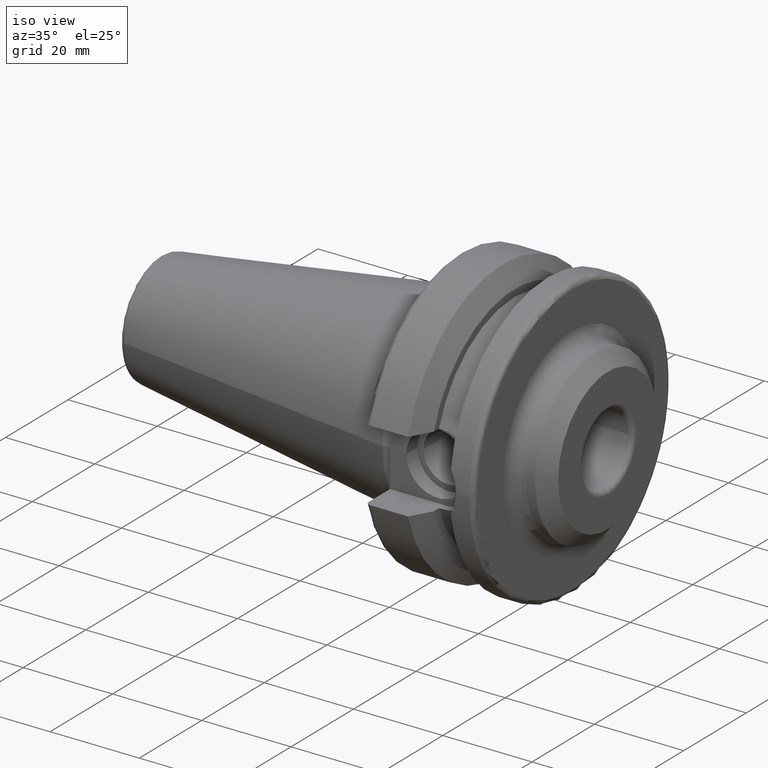
[diagram: clean part render]
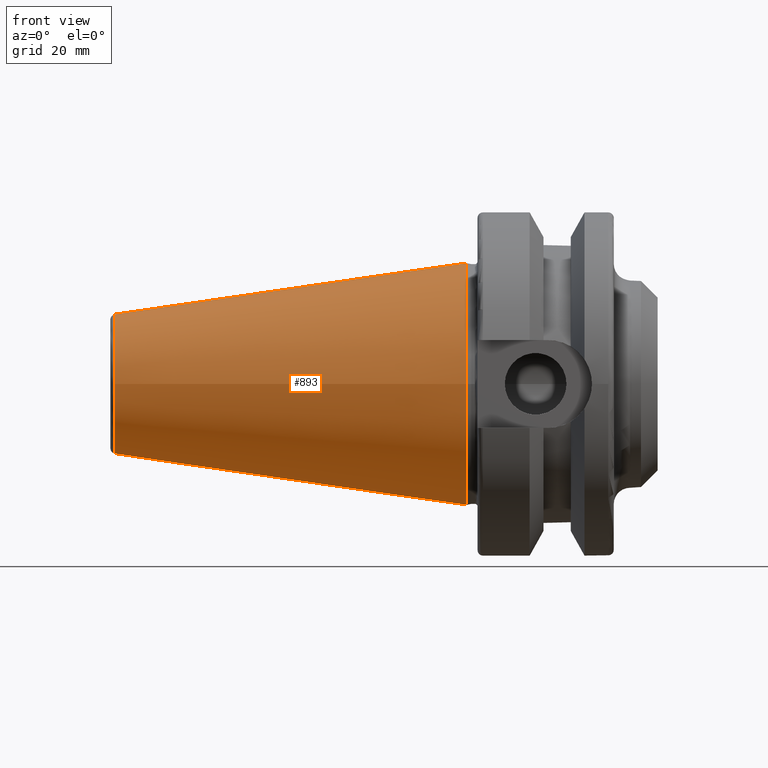
[diagram: tour spotlight — one face highlighted and labeled with its STEP entity id]
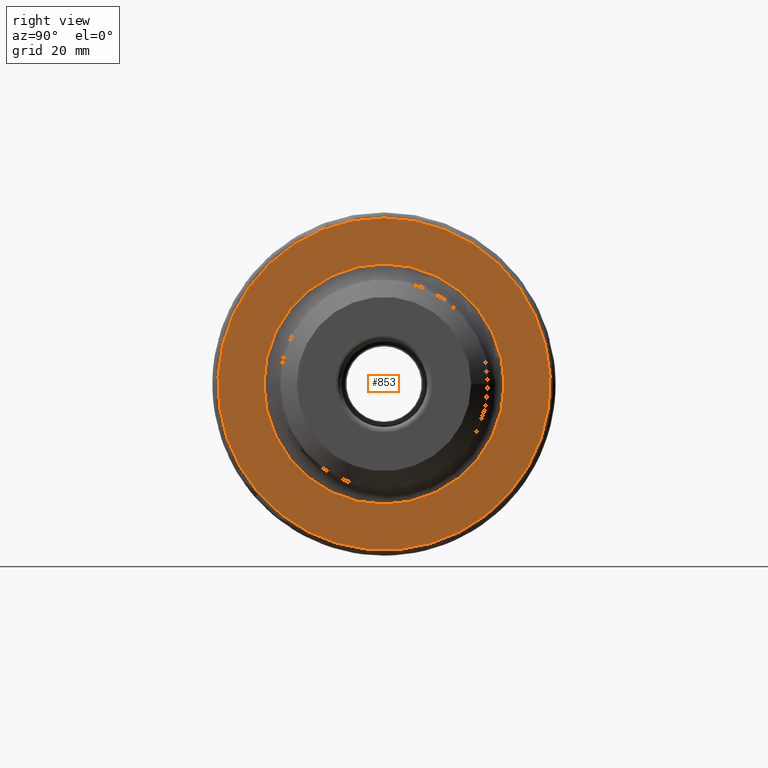
[diagram: tour spotlight — one face highlighted and labeled with its STEP entity id]
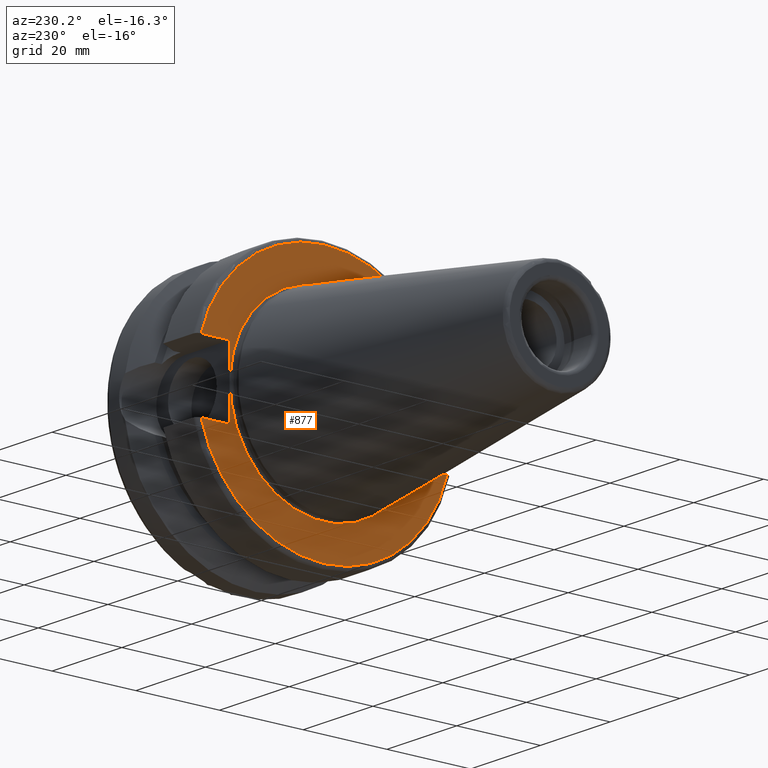
[diagram: tour spotlight — one face highlighted and labeled with its STEP entity id]
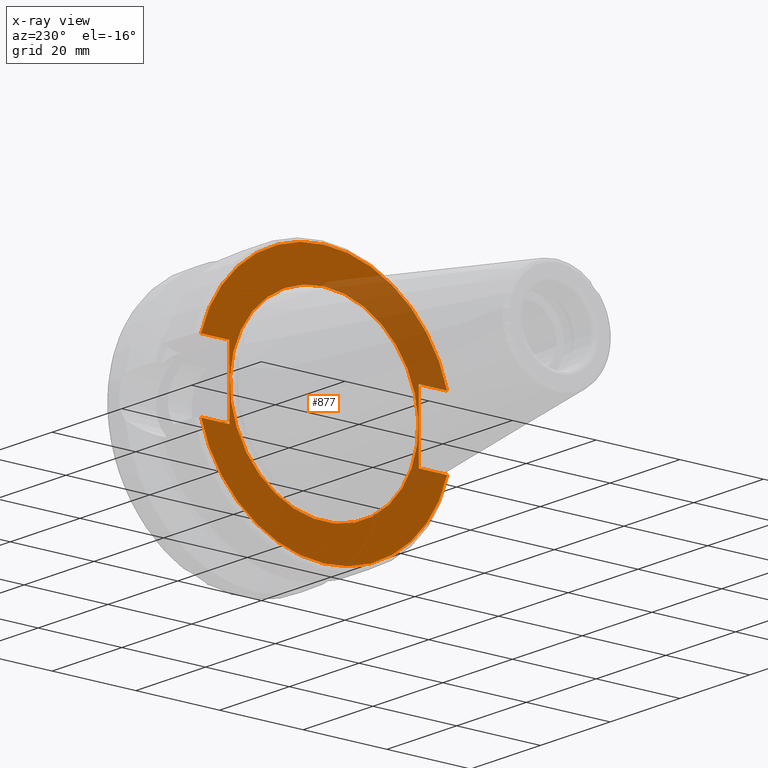
[diagram: x-ray of the same camera — body ghosted, this tour face saturated]
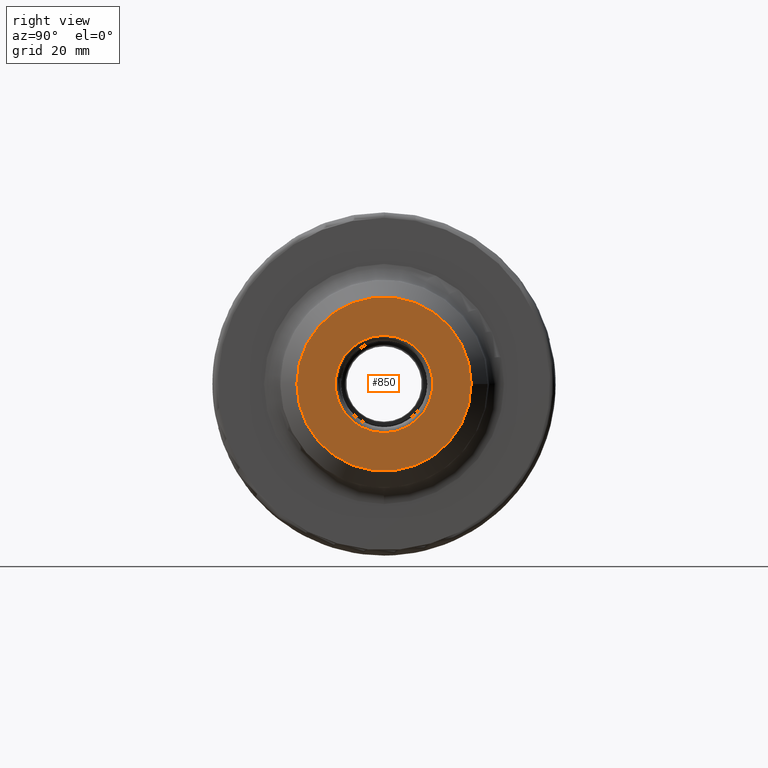
[diagram: tour spotlight — one face highlighted and labeled with its STEP entity id]
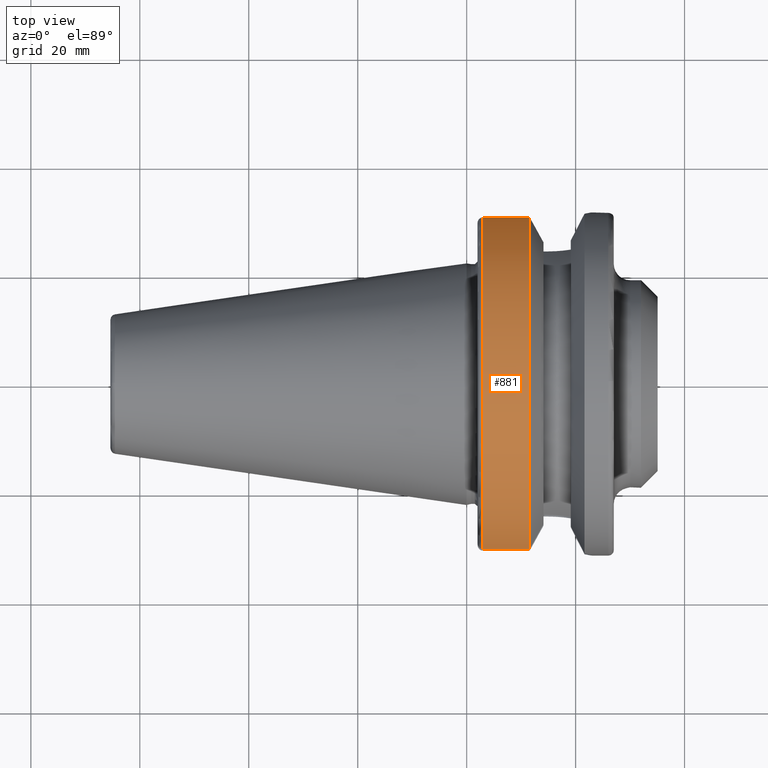
[diagram: tour spotlight — one face highlighted and labeled with its STEP entity id]
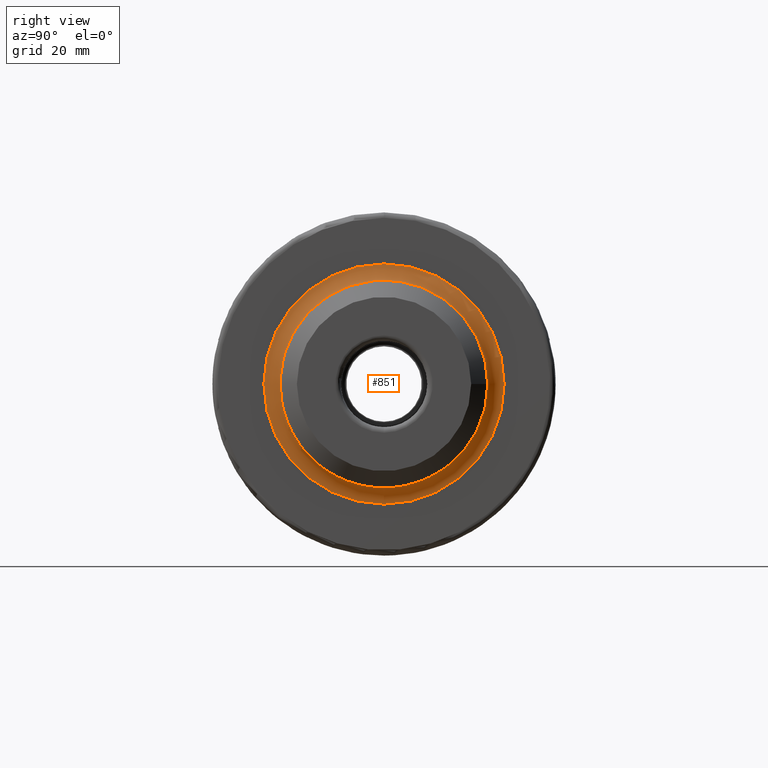
[diagram: tour spotlight — one face highlighted and labeled with its STEP entity id]
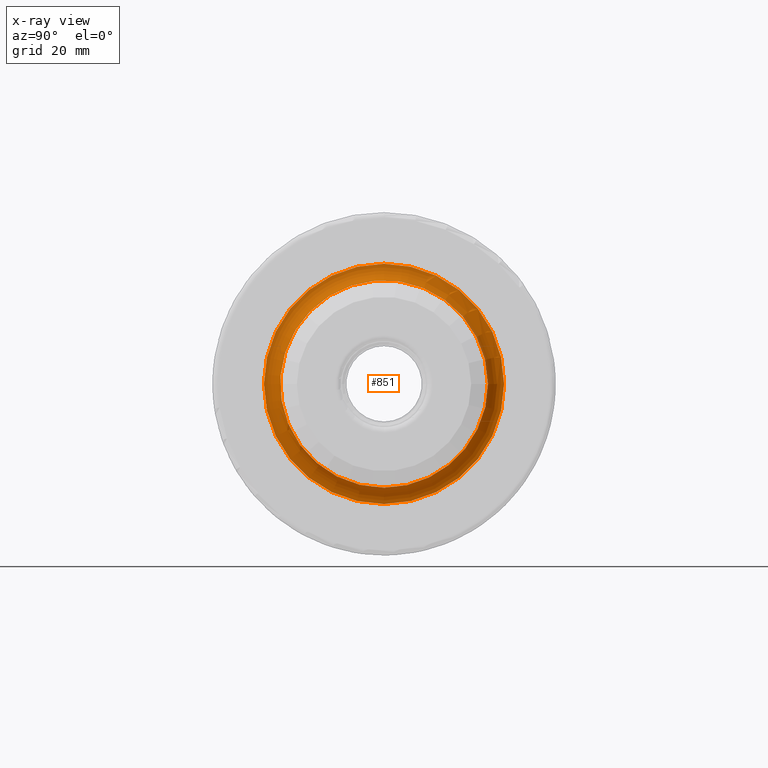
[diagram: x-ray of the same camera — body ghosted, this tour face saturated]
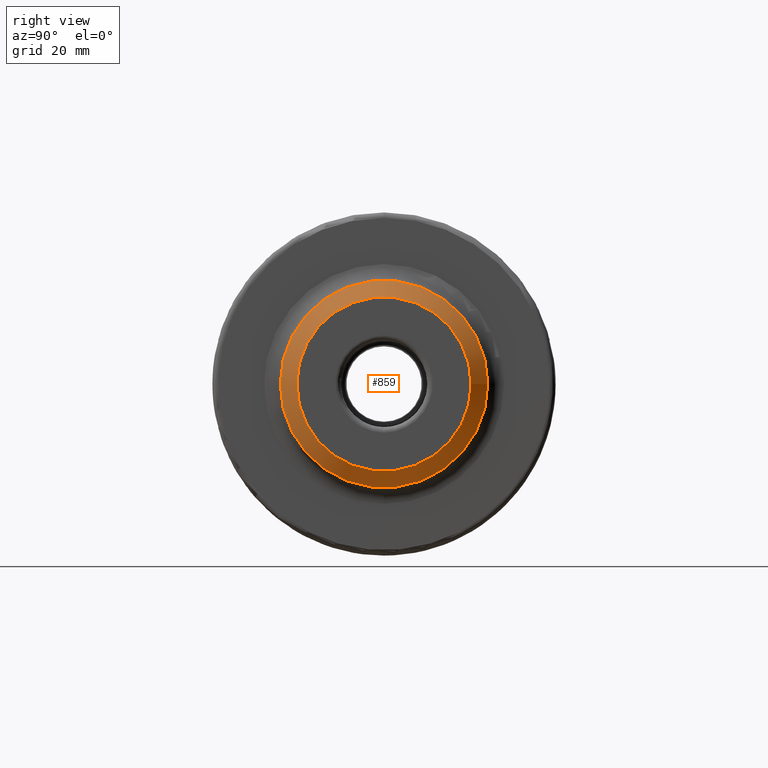
[diagram: tour spotlight — one face highlighted and labeled with its STEP entity id]
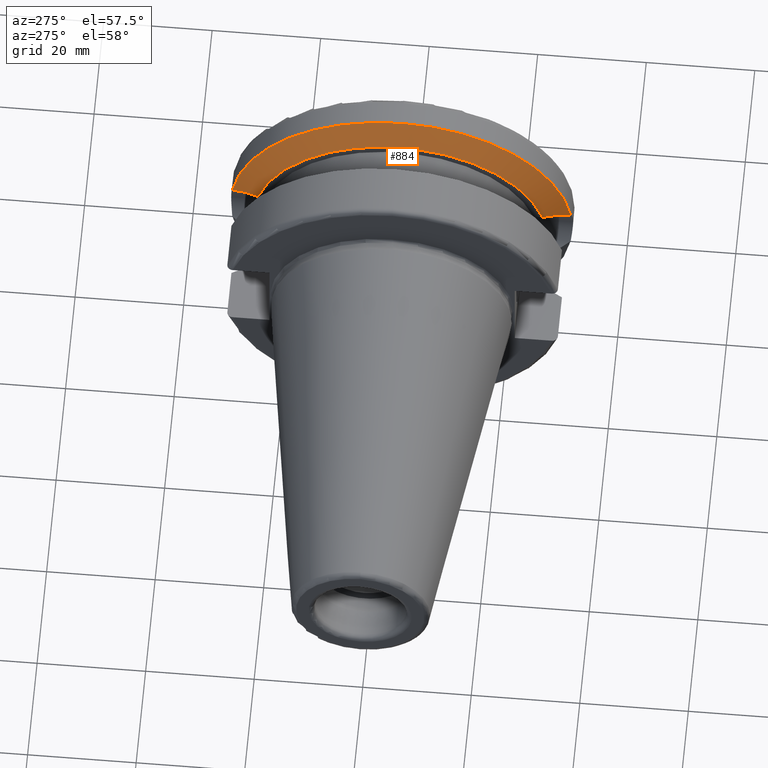
[diagram: tour spotlight — one face highlighted and labeled with its STEP entity id]
A machine part: a face-by-face anatomy tour. The part has 54 B-rep faces; the first image is the clean iso view, then the 8 largest visible faces are spotlighted one at a time (largest first), each with its STEP entity span.

Face 1 — front view, entity #893. In plain terms, the highlighted conical surface has half-angle 8.297 deg.
Definition (entity closure, byte-faithful):
#26=CONICAL_SURFACE('',#1026,17.5186442890469,0.144812498238939);
#135=FACE_OUTER_BOUND('',#201,.T.);
#201=EDGE_LOOP('',(#807,#808,#809,#810,#811));
#248=LINE('',#1704,#294);
#294=VECTOR('',#1296,17.5186442890469);
#350=CIRCLE('',#1023,12.8122885780937);
#351=CIRCLE('',#1024,12.8122885780937);
#353=CIRCLE('',#1027,22.225);
#436=VERTEX_POINT('',#1696);
#437=VERTEX_POINT('',#1697);
#438=VERTEX_POINT('',#1702);
#559=EDGE_CURVE('',#436,#437,#350,.T.);
#560=EDGE_CURVE('',#437,#436,#351,.T.);
#562=EDGE_CURVE('',#438,#438,#353,.T.);
#563=EDGE_CURVE('',#438,#436,#248,.T.);
#807=ORIENTED_EDGE('',*,*,#562,.F.);
#808=ORIENTED_EDGE('',*,*,#563,.T.);
#809=ORIENTED_EDGE('',*,*,#559,.T.);
#810=ORIENTED_EDGE('',*,*,#560,.T.);
#811=ORIENTED_EDGE('',*,*,#563,.F.);
#893=ADVANCED_FACE('',(#135),#26,.T.);
#1023=AXIS2_PLACEMENT_3D('',#1698,#1286,#1287);
#1024=AXIS2_PLACEMENT_3D('',#1699,#1288,#1289);
#1026=AXIS2_PLACEMENT_3D('',#1701,#1292,#1293);
#1027=AXIS2_PLACEMENT_3D('',#1703,#1294,#1295);
#1286=DIRECTION('center_axis',(1.,0.,0.));
#1287=DIRECTION('ref_axis',(0.,0.,-1.));
#1288=DIRECTION('center_axis',(1.,0.,0.));
#1289=DIRECTION('ref_axis',(0.,0.,-1.));
#1292=DIRECTION('center_axis',(1.,0.,0.));
#1293=DIRECTION('ref_axis',(0.,1.,0.));
#1294=DIRECTION('center_axis',(1.,0.,0.));
#1295=DIRECTION('ref_axis',(0.,0.,-1.));
#1296=DIRECTION('',(-0.989532981063282,0.144306893071729,1.76724974695192E-17));
#1696=CARTESIAN_POINT('',(-64.5443068930717,-12.8122885780937,-1.56905281969147E-15));
#1697=CARTESIAN_POINT('',(-64.5443068930717,-1.56905281969147E-15,12.8122885780937));
#1698=CARTESIAN_POINT('Origin',(-64.5443068930717,0.,0.));
#1699=CARTESIAN_POINT('Origin',(-64.5443068930717,0.,0.));
#1701=CARTESIAN_POINT('Origin',(-32.2721534465359,0.,0.));
#1702=CARTESIAN_POINT('',(4.44089209850063E-15,-22.225,-2.72177751110499E-15));
#1703=CARTESIAN_POINT('Origin',(1.11022302462516E-15,0.,0.));
#1704=CARTESIAN_POINT('',(-32.2721534465359,-17.5186442890469,-2.14541516539823E-15));

Face 2 — right view, entity #853. In plain terms, the highlighted planar face has unit normal (1, 0, 0).
Definition (entity closure, byte-faithful):
#56=FACE_BOUND('',#153,.T.);
#68=PLANE('',#946);
#95=FACE_OUTER_BOUND('',#152,.T.);
#152=EDGE_LOOP('',(#610));
#153=EDGE_LOOP('',(#611));
#311=CIRCLE('',#943,22.05);
#313=CIRCLE('',#947,30.5);
#372=VERTEX_POINT('',#1390);
#374=VERTEX_POINT('',#1398);
#462=EDGE_CURVE('',#372,#372,#311,.T.);
#465=EDGE_CURVE('',#374,#374,#313,.T.);
#610=ORIENTED_EDGE('',*,*,#465,.T.);
#611=ORIENTED_EDGE('',*,*,#462,.F.);
#853=ADVANCED_FACE('',(#95,#56),#68,.T.);
#943=AXIS2_PLACEMENT_3D('',#1392,#1087,#1088);
#946=AXIS2_PLACEMENT_3D('',#1397,#1094,#1095);
#947=AXIS2_PLACEMENT_3D('',#1399,#1096,#1097);
#1087=DIRECTION('center_axis',(1.,0.,0.));
#1088=DIRECTION('ref_axis',(0.,1.,1.22464679914735E-16));
#1094=DIRECTION('center_axis',(1.,0.,0.));
#1095=DIRECTION('ref_axis',(0.,0.,-1.));
#1096=DIRECTION('center_axis',(1.,0.,0.));
#1097=DIRECTION('ref_axis',(0.,0.,-1.));
#1390=CARTESIAN_POINT('',(27.,-2.70034619211991E-15,-22.05));
#1392=CARTESIAN_POINT('Origin',(27.,0.,0.));
#1397=CARTESIAN_POINT('Origin',(27.,0.,0.));
#1398=CARTESIAN_POINT('',(27.,-3.73517273739943E-15,30.5));
#1399=CARTESIAN_POINT('Origin',(27.,0.,0.));

Face 3 — auxiliary view, entity #877. An x-ray twin of the same camera follows (body ghosted, this face saturated) — the face is partly hidden behind the body. In plain terms, the highlighted planar face has unit normal (-1, 0, 0).
Definition (entity closure, byte-faithful):
#62=FACE_BOUND('',#183,.T.);
#80=PLANE('',#990);
#119=FACE_OUTER_BOUND('',#182,.T.);
#182=EDGE_LOOP('',(#736,#737,#738,#739,#740,#741,#742,#743));
#183=EDGE_LOOP('',(#744));
#217=LINE('',#1447,#263);
#225=LINE('',#1507,#271);
#228=LINE('',#1527,#274);
#237=LINE('',#1608,#283);
#242=LINE('',#1648,#288);
#244=LINE('',#1651,#290);
#263=VECTOR('',#1133,10.);
#271=VECTOR('',#1147,10.);
#274=VECTOR('',#1152,10.);
#283=VECTOR('',#1201,10.);
#288=VECTOR('',#1212,10.);
#290=VECTOR('',#1216,10.);
#331=CIRCLE('',#984,30.5);
#333=CIRCLE('',#991,30.5);
#334=CIRCLE('',#992,22.5);
#386=VERTEX_POINT('',#1435);
#387=VERTEX_POINT('',#1446);
#399=VERTEX_POINT('',#1504);
#400=VERTEX_POINT('',#1506);
#415=VERTEX_POINT('',#1587);
#419=VERTEX_POINT('',#1605);
#420=VERTEX_POINT('',#1607);
#427=VERTEX_POINT('',#1647);
#428=VERTEX_POINT('',#1654);
#481=EDGE_CURVE('',#387,#386,#217,.T.);
#496=EDGE_CURVE('',#400,#399,#225,.T.);
#501=EDGE_CURVE('',#399,#387,#228,.T.);
#521=EDGE_CURVE('',#400,#415,#331,.T.);
#526=EDGE_CURVE('',#420,#419,#237,.T.);
#536=EDGE_CURVE('',#427,#415,#242,.T.);
#538=EDGE_CURVE('',#419,#427,#244,.T.);
#539=EDGE_CURVE('',#420,#386,#333,.T.);
#540=EDGE_CURVE('',#428,#428,#334,.T.);
#736=ORIENTED_EDGE('',*,*,#481,.T.);
#737=ORIENTED_EDGE('',*,*,#539,.F.);
#738=ORIENTED_EDGE('',*,*,#526,.T.);
#739=ORIENTED_EDGE('',*,*,#538,.T.);
#740=ORIENTED_EDGE('',*,*,#536,.T.);
#741=ORIENTED_EDGE('',*,*,#521,.F.);
#742=ORIENTED_EDGE('',*,*,#496,.T.);
#743=ORIENTED_EDGE('',*,*,#501,.T.);
#744=ORIENTED_EDGE('',*,*,#540,.T.);
#877=ADVANCED_FACE('',(#119,#62),#80,.T.);
#984=AXIS2_PLACEMENT_3D('',#1588,#1194,#1195);
#990=AXIS2_PLACEMENT_3D('',#1652,#1217,#1218);
#991=AXIS2_PLACEMENT_3D('',#1653,#1219,#1220);
#992=AXIS2_PLACEMENT_3D('',#1655,#1221,#1222);
#1133=DIRECTION('',(0.,-1.,0.));
#1147=DIRECTION('',(0.,1.,0.));
#1152=DIRECTION('',(0.,0.,1.));
#1194=DIRECTION('center_axis',(1.,0.,0.));
#1195=DIRECTION('ref_axis',(0.,0.,-1.));
#1201=DIRECTION('',(0.,-1.,0.));
#1212=DIRECTION('',(0.,1.,0.));
#1216=DIRECTION('',(0.,0.,-1.));
#1217=DIRECTION('center_axis',(-1.,0.,0.));
#1218=DIRECTION('ref_axis',(0.,0.,1.));
#1219=DIRECTION('center_axis',(1.,0.,0.));
#1220=DIRECTION('ref_axis',(0.,0.,-1.));
#1221=DIRECTION('center_axis',(1.,0.,0.));
#1222=DIRECTION('ref_axis',(0.,0.,-1.));
#1435=CARTESIAN_POINT('',(1.99999999999999,-29.4184890842477,8.05));
#1446=CARTESIAN_POINT('',(1.99999999999999,-22.6,8.05));
#1447=CARTESIAN_POINT('',(1.99999999999999,3.95,8.05));
#1504=CARTESIAN_POINT('',(1.99999999999999,-22.6,-8.05));
#1506=CARTESIAN_POINT('',(1.99999999999999,-29.4184890842477,-8.05));
#1507=CARTESIAN_POINT('',(1.99999999999999,3.95,-8.05));
#1527=CARTESIAN_POINT('',(1.99999999999999,-22.6,0.));
#1587=CARTESIAN_POINT('',(1.99999999999999,29.4184890842477,-8.05));
#1588=CARTESIAN_POINT('Origin',(1.99999999999999,0.,0.));
#1605=CARTESIAN_POINT('',(1.99999999999999,22.6,8.05));
#1607=CARTESIAN_POINT('',(1.99999999999999,29.4184890842477,8.05));
#1608=CARTESIAN_POINT('',(1.99999999999999,26.55,8.05));
#1647=CARTESIAN_POINT('',(1.99999999999999,22.6,-8.05));
#1648=CARTESIAN_POINT('',(1.99999999999999,26.55,-8.05));
#1651=CARTESIAN_POINT('',(1.99999999999999,22.6,0.));
#1652=CARTESIAN_POINT('Origin',(1.99999999999999,30.5,0.));
#1653=CARTESIAN_POINT('Origin',(1.99999999999999,0.,0.));
#1654=CARTESIAN_POINT('',(2.,-2.75545529808154E-15,22.5));
#1655=CARTESIAN_POINT('Origin',(2.,0.,0.));

Face 4 — right view, entity #850. In plain terms, the highlighted planar face has unit normal (1, 0, 0).
Definition (entity closure, byte-faithful):
#55=FACE_BOUND('',#149,.T.);
#67=PLANE('',#937);
#92=FACE_OUTER_BOUND('',#148,.T.);
#148=EDGE_LOOP('',(#598));
#149=EDGE_LOOP('',(#599));
#302=CIRCLE('',#931,8.9375);
#307=CIRCLE('',#938,16.);
#365=VERTEX_POINT('',#1371);
#369=VERTEX_POINT('',#1383);
#452=EDGE_CURVE('',#365,#365,#302,.T.);
#458=EDGE_CURVE('',#369,#369,#307,.T.);
#598=ORIENTED_EDGE('',*,*,#458,.F.);
#599=ORIENTED_EDGE('',*,*,#452,.F.);
#850=ADVANCED_FACE('',(#92,#55),#67,.T.);
#931=AXIS2_PLACEMENT_3D('',#1372,#1062,#1063);
#937=AXIS2_PLACEMENT_3D('',#1382,#1075,#1076);
#938=AXIS2_PLACEMENT_3D('',#1384,#1077,#1078);
#1062=DIRECTION('center_axis',(1.,0.,0.));
#1063=DIRECTION('ref_axis',(0.,1.,1.22464679914735E-16));
#1075=DIRECTION('center_axis',(1.,0.,0.));
#1076=DIRECTION('ref_axis',(0.,0.,-1.));
#1077=DIRECTION('center_axis',(-1.,0.,0.));
#1078=DIRECTION('ref_axis',(0.,0.,1.));
#1371=CARTESIAN_POINT('',(35.05,-1.09452807673795E-15,-8.9375));
#1372=CARTESIAN_POINT('Origin',(35.05,0.,0.));
#1382=CARTESIAN_POINT('Origin',(35.05,-16.,0.));
#1383=CARTESIAN_POINT('',(35.05,16.,-1.95943487863577E-15));
#1384=CARTESIAN_POINT('Origin',(35.05,0.,0.));

Face 5 — top view, entity #881. In plain terms, the highlighted cylindrical surface (partial cylindrical patch) has radius 31.5 mm, axis along (1, 0, 0).
Definition (entity closure, byte-faithful):
#123=FACE_OUTER_BOUND('',#187,.T.);
#187=EDGE_LOOP('',(#759,#760,#761,#762));
#216=LINE('',#1434,#262);
#238=LINE('',#1621,#284);
#262=VECTOR('',#1132,10.);
#284=VECTOR('',#1202,10.);
#337=CIRCLE('',#997,31.5);
#339=CIRCLE('',#1001,31.5000000000001);
#384=VERTEX_POINT('',#1429);
#385=VERTEX_POINT('',#1433);
#421=VERTEX_POINT('',#1609);
#422=VERTEX_POINT('',#1620);
#479=EDGE_CURVE('',#385,#384,#216,.T.);
#528=EDGE_CURVE('',#422,#421,#238,.T.);
#543=EDGE_CURVE('',#421,#385,#337,.T.);
#545=EDGE_CURVE('',#422,#384,#339,.T.);
#759=ORIENTED_EDGE('',*,*,#479,.T.);
#760=ORIENTED_EDGE('',*,*,#545,.F.);
#761=ORIENTED_EDGE('',*,*,#528,.T.);
#762=ORIENTED_EDGE('',*,*,#543,.T.);
#839=CYLINDRICAL_SURFACE('',#1000,31.5);
#881=ADVANCED_FACE('',(#123),#839,.T.);
#997=AXIS2_PLACEMENT_3D('',#1660,#1231,#1232);
#1000=AXIS2_PLACEMENT_3D('',#1663,#1237,#1238);
#1001=AXIS2_PLACEMENT_3D('',#1664,#1239,#1240);
#1132=DIRECTION('',(1.,0.,0.));
#1202=DIRECTION('',(-1.,0.,0.));
#1231=DIRECTION('center_axis',(1.,0.,0.));
#1232=DIRECTION('ref_axis',(0.,0.,-1.));
#1237=DIRECTION('center_axis',(1.,0.,0.));
#1238=DIRECTION('ref_axis',(0.,1.,0.));
#1239=DIRECTION('center_axis',(1.,0.,0.));
#1240=DIRECTION('ref_axis',(0.,0.,-1.));
#1429=CARTESIAN_POINT('',(11.5690363073382,-30.4540227227866,8.05));
#1433=CARTESIAN_POINT('',(2.99999999999999,-30.4540227227866,8.05));
#1434=CARTESIAN_POINT('',(7.28451815366907,-30.4540227227866,8.05));
#1609=CARTESIAN_POINT('',(2.99999999999999,30.4540227227866,8.05));
#1620=CARTESIAN_POINT('',(11.5690363073382,30.4540227227866,8.05));
#1621=CARTESIAN_POINT('',(7.28451815366907,30.4540227227866,8.05));
#1660=CARTESIAN_POINT('Origin',(2.99999999999999,0.,0.));
#1663=CARTESIAN_POINT('Origin',(7.28451815366907,0.,0.));
#1664=CARTESIAN_POINT('Origin',(11.5690363073382,0.,0.));

Face 6 — right view, entity #851. An x-ray twin of the same camera follows (body ghosted, this face saturated) — the face is partly hidden behind the body. In plain terms, the highlighted toroidal blend (fillet) surface has major radius 22.05 mm and minor (blend) radius 3 mm.
Definition (entity closure, byte-faithful):
#29=TOROIDAL_SURFACE('',#939,22.05,3.);
#93=FACE_OUTER_BOUND('',#150,.T.);
#150=EDGE_LOOP('',(#600,#601,#602,#603,#604));
#308=CIRCLE('',#940,19.05);
#309=CIRCLE('',#941,19.05);
#310=CIRCLE('',#942,3.);
#311=CIRCLE('',#943,22.05);
#370=VERTEX_POINT('',#1386);
#371=VERTEX_POINT('',#1387);
#372=VERTEX_POINT('',#1390);
#459=EDGE_CURVE('',#370,#371,#308,.T.);
#460=EDGE_CURVE('',#371,#370,#309,.T.);
#461=EDGE_CURVE('',#370,#372,#310,.T.);
#462=EDGE_CURVE('',#372,#372,#311,.T.);
#600=ORIENTED_EDGE('',*,*,#459,.T.);
#601=ORIENTED_EDGE('',*,*,#460,.T.);
#602=ORIENTED_EDGE('',*,*,#461,.T.);
#603=ORIENTED_EDGE('',*,*,#462,.T.);
#604=ORIENTED_EDGE('',*,*,#461,.F.);
#851=ADVANCED_FACE('',(#93),#29,.F.);
#939=AXIS2_PLACEMENT_3D('',#1385,#1079,#1080);
#940=AXIS2_PLACEMENT_3D('',#1388,#1081,#1082);
#941=AXIS2_PLACEMENT_3D('',#1389,#1083,#1084);
#942=AXIS2_PLACEMENT_3D('',#1391,#1085,#1086);
#943=AXIS2_PLACEMENT_3D('',#1392,#1087,#1088);
#1079=DIRECTION('center_axis',(-1.,0.,0.));
#1080=DIRECTION('ref_axis',(0.,0.,1.));
#1081=DIRECTION('center_axis',(-1.,0.,0.));
#1082=DIRECTION('ref_axis',(0.,1.,1.22464679914735E-16));
#1083=DIRECTION('center_axis',(-1.,0.,0.));
#1084=DIRECTION('ref_axis',(0.,1.,1.22464679914735E-16));
#1085=DIRECTION('center_axis',(0.,-1.,1.22464679914735E-16));
#1086=DIRECTION('ref_axis',(0.,-1.22464679914735E-16,-1.));
#1087=DIRECTION('center_axis',(1.,0.,0.));
#1088=DIRECTION('ref_axis',(0.,1.,1.22464679914735E-16));
#1385=CARTESIAN_POINT('Origin',(30.,0.,0.));
#1386=CARTESIAN_POINT('',(30.,-2.33295215237571E-15,-19.05));
#1387=CARTESIAN_POINT('',(30.,19.05,-2.33295215237571E-15));
#1388=CARTESIAN_POINT('Origin',(30.,0.,0.));
#1389=CARTESIAN_POINT('Origin',(30.,0.,0.));
#1390=CARTESIAN_POINT('',(27.,-2.70034619211991E-15,-22.05));
#1391=CARTESIAN_POINT('Origin',(30.,-2.70034619211991E-15,-22.05));
#1392=CARTESIAN_POINT('Origin',(27.,0.,0.));

Face 7 — right view, entity #859. In plain terms, the highlighted conical surface has half-angle 45 deg.
Definition (entity closure, byte-faithful):
#20=CONICAL_SURFACE('',#958,17.525,0.785398163397448);
#101=FACE_OUTER_BOUND('',#162,.T.);
#162=EDGE_LOOP('',(#626,#627,#628,#629));
#212=LINE('',#1418,#258);
#258=VECTOR('',#1122,17.525);
#307=CIRCLE('',#938,16.);
#312=CIRCLE('',#945,19.05);
#369=VERTEX_POINT('',#1383);
#373=VERTEX_POINT('',#1394);
#458=EDGE_CURVE('',#369,#369,#307,.T.);
#464=EDGE_CURVE('',#373,#373,#312,.T.);
#473=EDGE_CURVE('',#373,#369,#212,.T.);
#626=ORIENTED_EDGE('',*,*,#464,.F.);
#627=ORIENTED_EDGE('',*,*,#473,.T.);
#628=ORIENTED_EDGE('',*,*,#458,.T.);
#629=ORIENTED_EDGE('',*,*,#473,.F.);
#859=ADVANCED_FACE('',(#101),#20,.T.);
#938=AXIS2_PLACEMENT_3D('',#1384,#1077,#1078);
#945=AXIS2_PLACEMENT_3D('',#1396,#1092,#1093);
#958=AXIS2_PLACEMENT_3D('',#1417,#1120,#1121);
#1077=DIRECTION('center_axis',(-1.,0.,0.));
#1078=DIRECTION('ref_axis',(0.,0.,1.));
#1092=DIRECTION('center_axis',(-1.,0.,0.));
#1093=DIRECTION('ref_axis',(0.,0.,1.));
#1120=DIRECTION('center_axis',(-1.,0.,0.));
#1121=DIRECTION('ref_axis',(0.,-1.,0.));
#1122=DIRECTION('',(0.707106781186548,-0.707106781186548,8.65956056235494E-17));
#1383=CARTESIAN_POINT('',(35.05,16.,-1.95943487863577E-15));
#1384=CARTESIAN_POINT('Origin',(35.05,0.,0.));
#1394=CARTESIAN_POINT('',(32.,19.05,-2.33295215237571E-15));
#1396=CARTESIAN_POINT('Origin',(32.,0.,0.));
#1417=CARTESIAN_POINT('Origin',(33.525,0.,0.));
#1418=CARTESIAN_POINT('',(33.525,17.525,-2.14619351550574E-15));

Face 8 — auxiliary view, entity #884. In plain terms, the highlighted conical surface has half-angle 60.125 deg.
Definition (entity closure, byte-faithful):
#24=CONICAL_SURFACE('',#1005,29.2970358274569,1.0493792127616);
#44=B_SPLINE_CURVE_WITH_KNOTS('',3,(#1494,#1495,#1496,#1497,#1498,#1499),
 .UNSPECIFIED.,.F.,.F.,(4,2,4),(1.46421027899559,1.54570476603972,2.04294020568399),
 .UNSPECIFIED.);
#52=B_SPLINE_CURVE_WITH_KNOTS('',3,(#1637,#1638,#1639,#1640,#1641,#1642),
 .UNSPECIFIED.,.F.,.F.,(4,2,4),(3.12975744792547,3.62699288756974,3.70848737461386),
 .UNSPECIFIED.);
#126=FACE_OUTER_BOUND('',#190,.T.);
#190=EDGE_LOOP('',(#771,#772,#773,#774));
#323=CIRCLE('',#969,31.5);
#340=CIRCLE('',#1004,27.0940716549138);
#396=VERTEX_POINT('',#1486);
#397=VERTEX_POINT('',#1493);
#407=VERTEX_POINT('',#1535);
#425=VERTEX_POINT('',#1635);
#492=EDGE_CURVE('',#397,#396,#44,.T.);
#506=EDGE_CURVE('',#407,#396,#323,.T.);
#533=EDGE_CURVE('',#407,#425,#52,.T.);
#546=EDGE_CURVE('',#425,#397,#340,.T.);
#771=ORIENTED_EDGE('',*,*,#492,.T.);
#772=ORIENTED_EDGE('',*,*,#506,.F.);
#773=ORIENTED_EDGE('',*,*,#533,.T.);
#774=ORIENTED_EDGE('',*,*,#546,.T.);
#884=ADVANCED_FACE('',(#126),#24,.T.);
#969=AXIS2_PLACEMENT_3D('',#1546,#1160,#1161);
#1004=AXIS2_PLACEMENT_3D('',#1667,#1245,#1246);
#1005=AXIS2_PLACEMENT_3D('',#1668,#1247,#1248);
#1160=DIRECTION('center_axis',(1.,0.,0.));
#1161=DIRECTION('ref_axis',(0.,0.,-1.));
#1245=DIRECTION('center_axis',(1.,0.,0.));
#1246=DIRECTION('ref_axis',(0.,0.,-1.));
#1247=DIRECTION('center_axis',(1.,0.,0.));
#1248=DIRECTION('ref_axis',(0.,1.,0.));
#1486=CARTESIAN_POINT('',(21.6309636926618,-31.1782420264945,4.4907932637046));
#1493=CARTESIAN_POINT('',(19.1,-26.201311395455,6.89782574439221));
#1494=CARTESIAN_POINT('Ctrl Pts',(19.1,-26.201311395455,6.89782574439221));
#1495=CARTESIAN_POINT('Ctrl Pts',(19.2210929544554,-26.4384736933511,6.82497151762395));
#1496=CARTESIAN_POINT('Ctrl Pts',(19.3406963650697,-26.6728819297428,6.74867108656039));
#1497=CARTESIAN_POINT('Ctrl Pts',(20.1784155384866,-28.3157123387484,6.18231368976925));
#1498=CARTESIAN_POINT('Ctrl Pts',(20.9728756148303,-29.8797957262939,5.46983244373115));
#1499=CARTESIAN_POINT('Ctrl Pts',(21.6309636926618,-31.1782420264945,4.4907932637046));
#1535=CARTESIAN_POINT('',(21.6309636926618,31.1782420264945,4.4907932637046));
#1546=CARTESIAN_POINT('Origin',(21.6309636926618,0.,0.));
#1635=CARTESIAN_POINT('',(19.1,26.201311395455,6.89782574439221));
#1637=CARTESIAN_POINT('Ctrl Pts',(21.6309636926618,31.1782420264945,4.4907932637046));
#1638=CARTESIAN_POINT('Ctrl Pts',(20.9728756148303,29.8797957262939,5.46983244373114));
#1639=CARTESIAN_POINT('Ctrl Pts',(20.1784155384866,28.3157123387484,6.18231368976924));
#1640=CARTESIAN_POINT('Ctrl Pts',(19.3406963650697,26.6728819297428,6.74867108656039));
#1641=CARTESIAN_POINT('Ctrl Pts',(19.2210929544554,26.438473693351,6.82497151762395));
#1642=CARTESIAN_POINT('Ctrl Pts',(19.1,26.201311395455,6.89782574439221));
#1667=CARTESIAN_POINT('Origin',(19.1,0.,0.));
#1668=CARTESIAN_POINT('Origin',(20.3654818463309,0.,0.));